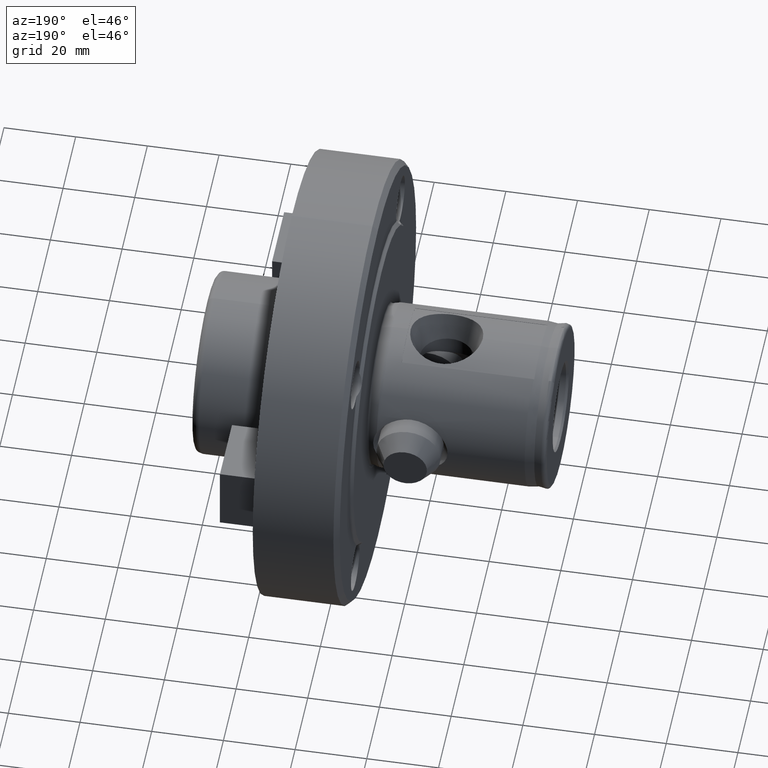
[diagram: clean part render]
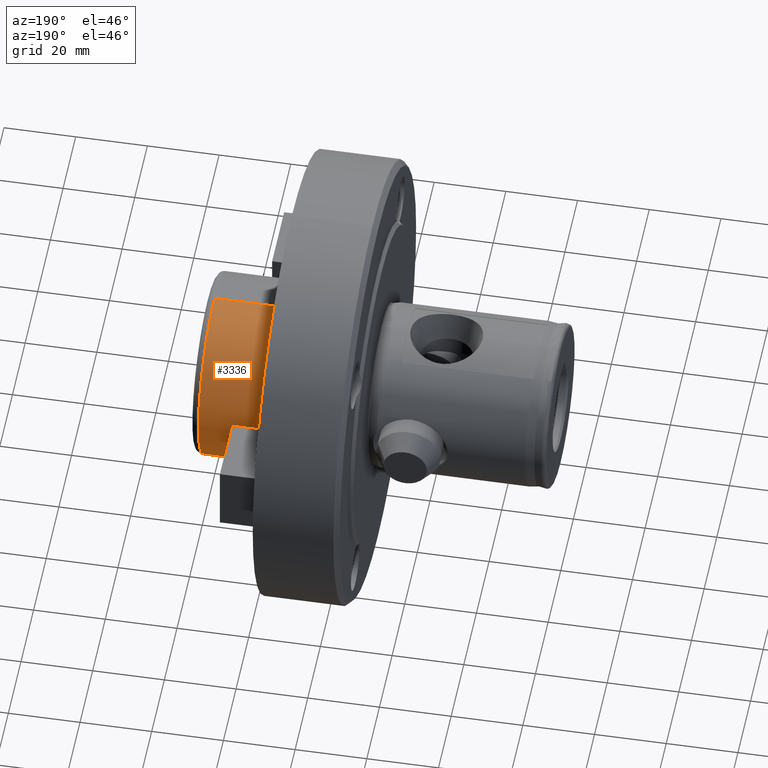
[diagram: same view with one face highlighted and labeled with its STEP entity id]
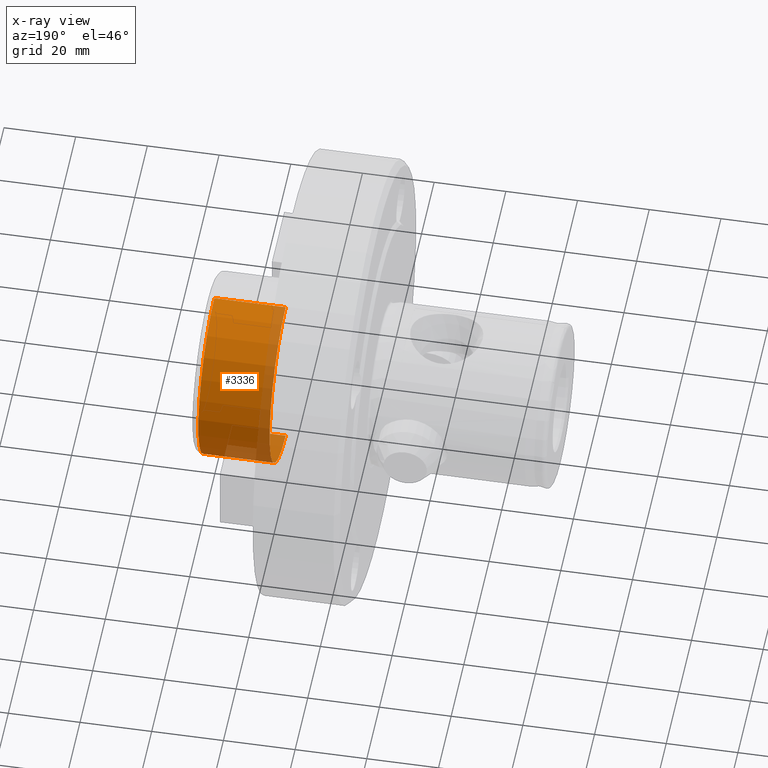
[diagram: x-ray of the same camera — body ghosted, the highlighted face saturated]
A machine part, auxiliary view. The second image highlights one B-rep face of the part: STEP entity #3336.
The next image is the same camera in x-ray: the body ghosted, the highlighted face saturated — about 21% of this face is hidden behind the body in this view.
In plain terms, the highlighted cylindrical surface (partial cylindrical patch) has radius 25.396 mm, axis along (-1, -0, -0).
Its self-contained STEP definition (entity closure, byte-faithful):
#136 = AXIS2_PLACEMENT_3D ( 'NONE', #2310, #2309, #2284 ) ;
#301 = AXIS2_PLACEMENT_3D ( 'NONE', #3106, #3104, #3102 ) ;
#312 = AXIS2_PLACEMENT_3D ( 'NONE', #3068, #3067, #3066 ) ;
#1562 = ORIENTED_EDGE ( 'NONE', *, *, #5123, .T. ) ;
#1563 = ORIENTED_EDGE ( 'NONE', *, *, #5122, .T. ) ;
#1564 = ORIENTED_EDGE ( 'NONE', *, *, #5111, .F. ) ;
#1567 = ORIENTED_EDGE ( 'NONE', *, *, #5124, .F. ) ;
#1600 = EDGE_LOOP ( 'NONE', ( #1562, #1563, #1564, #1567 ) ) ;
#1723 = CIRCLE ( 'NONE', #301, 25.39599999999999700 ) ;
#1733 = VECTOR ( 'NONE', #3063, 1000.000000000000000 ) ;
#1737 = LINE ( 'NONE', #3064, #1733 ) ;
#1738 = LINE ( 'NONE', #3071, #1739 ) ;
#1739 = VECTOR ( 'NONE', #3069, 1000.000000000000000 ) ;
#1742 = CIRCLE ( 'NONE', #312, 25.39600000000000100 ) ;
#2284 = DIRECTION ( 'NONE',  ( 0.0000000000000000000, 0.0000000000000000000, 1.000000000000000000 ) ) ;
#2309 = DIRECTION ( 'NONE',  ( -1.000000000000000000, -0.0000000000000000000, -0.0000000000000000000 ) ) ;
#2310 = CARTESIAN_POINT ( 'NONE',  ( 0.0000000000000000000, 0.0000000000000000000, 0.0000000000000000000 ) ) ;
#3063 = DIRECTION ( 'NONE',  ( -1.000000000000000000, -0.0000000000000000000, -0.0000000000000000000 ) ) ;
#3064 = CARTESIAN_POINT ( 'NONE',  ( 0.0000000000000000000, 0.0000000000000000000, 25.39600000000000100 ) ) ;
#3066 = DIRECTION ( 'NONE',  ( 0.0000000000000000000, 0.0000000000000000000, 1.000000000000000000 ) ) ;
#3067 = DIRECTION ( 'NONE',  ( -1.000000000000000000, -0.0000000000000000000, -0.0000000000000000000 ) ) ;
#3068 = CARTESIAN_POINT ( 'NONE',  ( 96.59999999999999400, 0.0000000000000000000, 0.0000000000000000000 ) ) ;
#3069 = DIRECTION ( 'NONE',  ( -1.000000000000000000, -0.0000000000000000000, -0.0000000000000000000 ) ) ;
#3071 = CARTESIAN_POINT ( 'NONE',  ( 0.0000000000000000000, 3.110113011114618500E-015, -25.39600000000000100 ) ) ;
#3102 = DIRECTION ( 'NONE',  ( 0.0000000000000000000, 0.0000000000000000000, 1.000000000000000000 ) ) ;
#3104 = DIRECTION ( 'NONE',  ( -1.000000000000000000, -0.0000000000000000000, -0.0000000000000000000 ) ) ;
#3106 = CARTESIAN_POINT ( 'NONE',  ( 76.72493724034058000, 0.0000000000000000000, 0.0000000000000000000 ) ) ;
#3336 = ADVANCED_FACE ( 'NONE', ( #3947 ), #3958, .T. ) ;
#3947 = FACE_OUTER_BOUND ( 'NONE', #1600, .T. ) ;
#3958 = CYLINDRICAL_SURFACE ( 'NONE', #136, 25.39600000000000100 ) ;
#4402 = VERTEX_POINT ( 'NONE', #4882 ) ;
#4408 = VERTEX_POINT ( 'NONE', #4891 ) ;
#4409 = VERTEX_POINT ( 'NONE', #4892 ) ;
#4410 = VERTEX_POINT ( 'NONE', #4894 ) ;
#4882 = CARTESIAN_POINT ( 'NONE',  ( 76.72493724034058000, 0.0000000000000000000, 25.39599999999999700 ) ) ;
#4891 = CARTESIAN_POINT ( 'NONE',  ( 96.59999999999999400, 3.110113011114618500E-015, -25.39600000000000100 ) ) ;
#4892 = CARTESIAN_POINT ( 'NONE',  ( 96.59999999999999400, 0.0000000000000000000, 25.39600000000000100 ) ) ;
#4894 = CARTESIAN_POINT ( 'NONE',  ( 76.72493724034058000, 3.110113011114618100E-015, -25.39599999999999700 ) ) ;
#5111 = EDGE_CURVE ( 'NONE', #4402, #4410, #1723, .T. ) ;
#5122 = EDGE_CURVE ( 'NONE', #4408, #4410, #1738, .T. ) ;
#5123 = EDGE_CURVE ( 'NONE', #4409, #4408, #1742, .T. ) ;
#5124 = EDGE_CURVE ( 'NONE', #4409, #4402, #1737, .T. ) ;